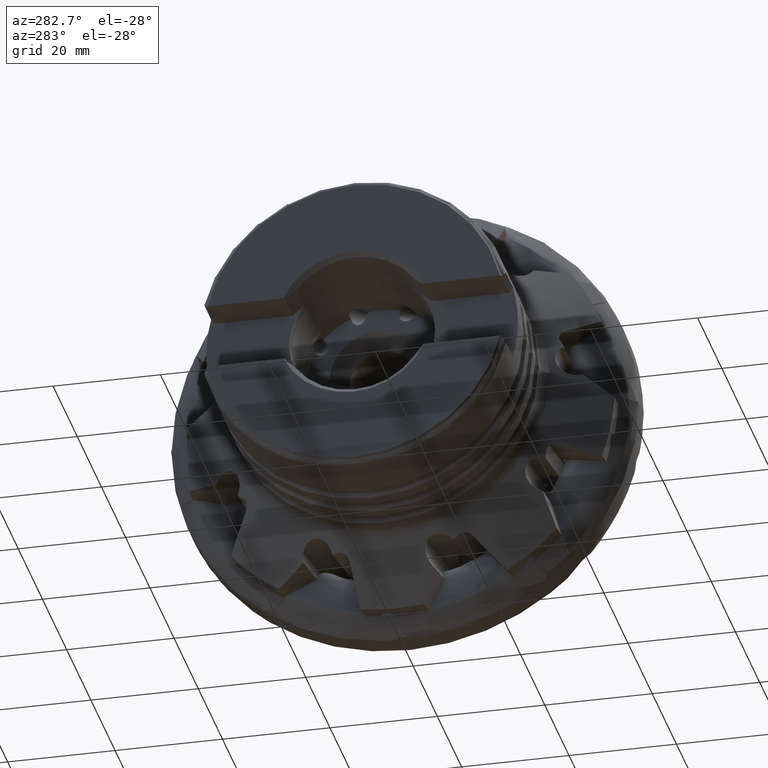
[diagram: clean part render]
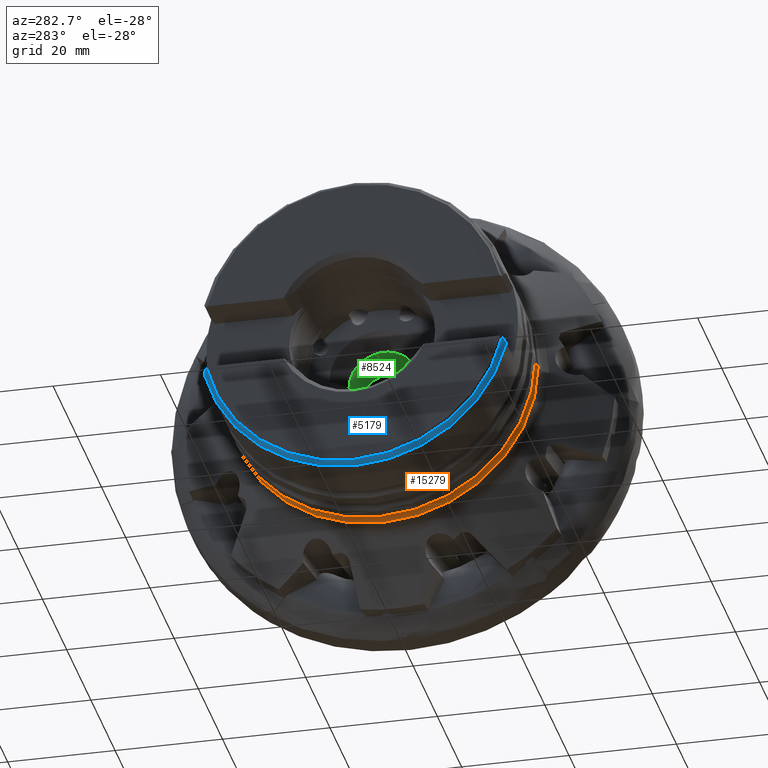
[diagram: same view with three faces highlighted in distinct colors, each labeled with its STEP entity id]
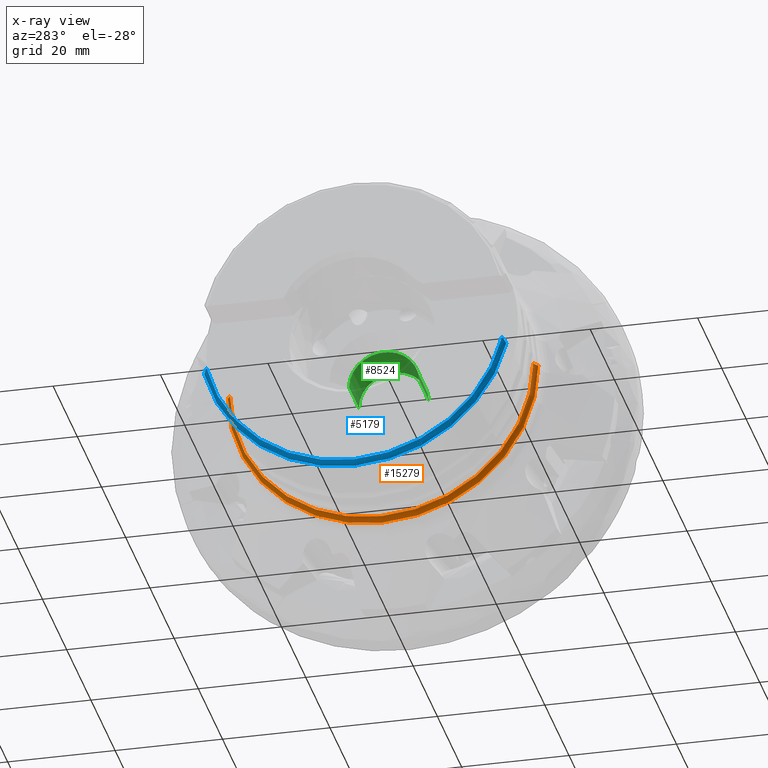
[diagram: x-ray of the same camera — body ghosted, the three highlighted faces saturated]
A machine part, auxiliary view with three faces highlighted in distinct colors.
The next image is the same camera in x-ray (body ghosted, the three faces saturated) — at least one of them is partly hidden behind the body in this view.
Their STEP definitions:

[orange] entity #15279 — the highlighted toroidal blend (fillet) surface has major radius 29.75 mm and minor (blend) radius 1.5 mm.
#102 = EDGE_CURVE ( 'NONE', #8661, #2740, #10117, .T. ) ;
#318 = CIRCLE ( 'NONE', #3171, 1.500000000000001300 ) ;
#1261 = FACE_OUTER_BOUND ( 'NONE', #14093, .T. ) ;
#1857 = DIRECTION ( 'NONE',  ( 1.000000000000000000, 1.224646799147353700E-016, -0.0000000000000000000 ) ) ;
#2046 = CIRCLE ( 'NONE', #2717, 28.91176470588227000 ) ;
#2416 = CARTESIAN_POINT ( 'NONE',  ( -26.15000000000000200, -28.24999999999991500, 3.459627207591261200E-015 ) ) ;
#2717 = AXIS2_PLACEMENT_3D ( 'NONE', #10583, #1857, #12022 ) ;
#2740 = VERTEX_POINT ( 'NONE', #11307 ) ;
#3031 = AXIS2_PLACEMENT_3D ( 'NONE', #5617, #15788, #7080 ) ;
#3049 = ORIENTED_EDGE ( 'NONE', *, *, #5541, .T. ) ;
#3171 = AXIS2_PLACEMENT_3D ( 'NONE', #15240, #6535, #16690 ) ;
#3264 = DIRECTION ( 'NONE',  ( 1.000000000000000000, 1.224646799147353700E-016, -0.0000000000000000000 ) ) ;
#4141 = VERTEX_POINT ( 'NONE', #2416 ) ;
#4987 = CARTESIAN_POINT ( 'NONE',  ( -24.90607010177602400, -28.91176470588227300, 3.540670010476013700E-015 ) ) ;
#5541 = EDGE_CURVE ( 'NONE', #4141, #2740, #15093, .T. ) ;
#5542 = ORIENTED_EDGE ( 'NONE', *, *, #8657, .F. ) ;
#5617 = CARTESIAN_POINT ( 'NONE',  ( -26.15000000000000600, 29.74999999999990800, 0.0000000000000000000 ) ) ;
#6163 = CARTESIAN_POINT ( 'NONE',  ( -24.90607010177603100, 28.91176470588226600, 0.0000000000000000000 ) ) ;
#6364 = DIRECTION ( 'NONE',  ( 1.000000000000000000, 1.224646799147353700E-016, -0.0000000000000000000 ) ) ;
#6535 = DIRECTION ( 'NONE',  ( -1.499759782661858200E-032, 1.224646799147353200E-016, 1.000000000000000000 ) ) ;
#7029 = VERTEX_POINT ( 'NONE', #4987 ) ;
#7080 = DIRECTION ( 'NONE',  ( -1.000000000000000000, 0.0000000000000000000, 0.0000000000000000000 ) ) ;
#7807 = ORIENTED_EDGE ( 'NONE', *, *, #102, .F. ) ;
#7845 = CARTESIAN_POINT ( 'NONE',  ( -26.15000000000000200, -3.469446951953614200E-015, 0.0000000000000000000 ) ) ;
#7897 = AXIS2_PLACEMENT_3D ( 'NONE', #7845, #6364, #10786 ) ;
#8657 = EDGE_CURVE ( 'NONE', #7029, #8661, #2046, .T. ) ;
#8661 = VERTEX_POINT ( 'NONE', #6163 ) ;
#10117 = CIRCLE ( 'NONE', #3031, 1.500000000000001300 ) ;
#10583 = CARTESIAN_POINT ( 'NONE',  ( -24.90607010177602700, -3.050113902947961600E-015, 0.0000000000000000000 ) ) ;
#10786 = DIRECTION ( 'NONE',  ( -1.224646799147353700E-016, 1.000000000000000000, 0.0000000000000000000 ) ) ;
#11307 = CARTESIAN_POINT ( 'NONE',  ( -26.15000000000000200, 28.24999999999990800, 0.0000000000000000000 ) ) ;
#11967 = CARTESIAN_POINT ( 'NONE',  ( -26.15000000000000200, -3.469446951953614200E-015, 0.0000000000000000000 ) ) ;
#12022 = DIRECTION ( 'NONE',  ( -1.200012170563817100E-016, 1.000000000000000000, 0.0000000000000000000 ) ) ;
#12836 = TOROIDAL_SURFACE ( 'NONE', #7897, 29.74999999999991100, 1.500000000000000700 ) ;
#13391 = DIRECTION ( 'NONE',  ( -1.228122814850840800E-016, 1.000000000000000000, 0.0000000000000000000 ) ) ;
#14093 = EDGE_LOOP ( 'NONE', ( #14779, #3049, #7807, #5542 ) ) ;
#14779 = ORIENTED_EDGE ( 'NONE', *, *, #16797, .T. ) ;
#15093 = CIRCLE ( 'NONE', #15439, 28.24999999999991100 ) ;
#15240 = CARTESIAN_POINT ( 'NONE',  ( -26.14999999999999900, -29.74999999999991500, 3.643324227463364300E-015 ) ) ;
#15279 = ADVANCED_FACE ( 'NONE', ( #1261 ), #12836, .F. ) ;
#15439 = AXIS2_PLACEMENT_3D ( 'NONE', #11967, #3264, #13391 ) ;
#15788 = DIRECTION ( 'NONE',  ( -0.0000000000000000000, 0.0000000000000000000, -1.000000000000000000 ) ) ;
#16690 = DIRECTION ( 'NONE',  ( 0.0000000000000000000, -1.000000000000000000, 1.224646799147354400E-016 ) ) ;
#16797 = EDGE_CURVE ( 'NONE', #7029, #4141, #318, .T. ) ;

[blue] entity #5179 — the highlighted toroidal blend (fillet) surface has major radius 28 mm and minor (blend) radius 1 mm.
#356 = CIRCLE ( 'NONE', #13723, 28.20499999999999800 ) ;
#934 = DIRECTION ( 'NONE',  ( -1.224646799147353900E-016, 1.000000000000000000, 0.0000000000000000000 ) ) ;
#1321 = B_SPLINE_CURVE_WITH_KNOTS ( 'NONE', 3,
 ( #17300, #10020, #15906, #7216, #17365, #8691, #18809, #10156, #1453, #11607 ),
 .UNSPECIFIED., .F., .F.,
 ( 4, 2, 2, 2, 4 ),
 ( 0.0000000000000000000, 0.0003988505522339760700, 0.0007977011044679521400, 0.001196551656701928200, 0.001595402208935904300 ),
 .UNSPECIFIED. ) ;
#1453 = CARTESIAN_POINT ( 'NONE',  ( -48.60897223004025800, -27.58006288938687300, -6.341108826567981400 ) ) ;
#1849 = CARTESIAN_POINT ( 'NONE',  ( -48.62876197310682600, 27.50847916792021400, -6.229414006798635700 ) ) ;
#3998 = CARTESIAN_POINT ( 'NONE',  ( -48.47815336761254900, 27.78313588775620600, -6.657971396551015900 ) ) ;
#4378 = ORIENTED_EDGE ( 'NONE', *, *, #18329, .T. ) ;
#4770 = VERTEX_POINT ( 'NONE', #15757 ) ;
#5179 = ADVANCED_FACE ( 'NONE', ( #7161 ), #18265, .T. ) ;
#5225 = CARTESIAN_POINT ( 'NONE',  ( -48.62876197310682600, -5.955305769686382100E-015, 0.0000000000000000000 ) ) ;
#5451 = CARTESIAN_POINT ( 'NONE',  ( -48.25013946713546900, 27.96058423724833400, -6.934850846358847000 ) ) ;
#6685 = DIRECTION ( 'NONE',  ( 0.0000000000000000000, 1.000000000000000000, 0.0000000000000000000 ) ) ;
#6838 = ORIENTED_EDGE ( 'NONE', *, *, #12738, .F. ) ;
#6917 = CARTESIAN_POINT ( 'NONE',  ( -47.91709509882156200, 28.08225501466462100, -7.124698416117222900 ) ) ;
#7161 = FACE_OUTER_BOUND ( 'NONE', #14607, .T. ) ;
#7216 = CARTESIAN_POINT ( 'NONE',  ( -48.14877445995087900, -28.01108605309574200, -7.013650762087340100 ) ) ;
#7857 = CIRCLE ( 'NONE', #12468, 28.99999999999991100 ) ;
#8056 = DIRECTION ( 'NONE',  ( 1.000000000000000000, 1.224646799147353700E-016, -0.0000000000000000000 ) ) ;
#8381 = CARTESIAN_POINT ( 'NONE',  ( -47.64999999999999100, 28.10297166081743500, -7.157023391835924300 ) ) ;
#8436 = DIRECTION ( 'NONE',  ( 1.000000000000000000, 1.224646799147353700E-016, -0.0000000000000000000 ) ) ;
#8691 = CARTESIAN_POINT ( 'NONE',  ( -48.41291777204589400, -27.84772606875892400, -6.758753927525303200 ) ) ;
#9636 = CARTESIAN_POINT ( 'NONE',  ( -47.64999999999999900, -6.938893903907228400E-015, 0.0000000000000000000 ) ) ;
#9761 = CARTESIAN_POINT ( 'NONE',  ( -48.62876197310682600, 27.50847916792021400, -6.229414006798635700 ) ) ;
#9776 = VERTEX_POINT ( 'NONE', #13489 ) ;
#9981 = AXIS2_PLACEMENT_3D ( 'NONE', #9636, #8056, #934 ) ;
#10020 = CARTESIAN_POINT ( 'NONE',  ( -47.78522232110169200, -28.10297166081743500, -7.157023391835973100 ) ) ;
#10050 = CARTESIAN_POINT ( 'NONE',  ( -48.62876197310682600, -27.50847916792022100, -6.229414006798680100 ) ) ;
#10156 = CARTESIAN_POINT ( 'NONE',  ( -48.57511601862709200, -27.65049711973441400, -6.451010051358633900 ) ) ;
#11607 = CARTESIAN_POINT ( 'NONE',  ( -48.62876197310682600, -27.50847916792022100, -6.229414006798680100 ) ) ;
#12468 = AXIS2_PLACEMENT_3D ( 'NONE', #17123, #8436, #18553 ) ;
#12680 = CARTESIAN_POINT ( 'NONE',  ( -48.57577667119930700, 27.64940871936798300, -6.449311778619005500 ) ) ;
#12738 = EDGE_CURVE ( 'NONE', #9776, #4770, #7857, .T. ) ;
#13489 = CARTESIAN_POINT ( 'NONE',  ( -47.64999999999999100, -28.10297166081743800, -7.157023391835970500 ) ) ;
#13723 = AXIS2_PLACEMENT_3D ( 'NONE', #5225, #15385, #6685 ) ;
#14154 = CARTESIAN_POINT ( 'NONE',  ( -48.41357031432581000, 27.84715059204750200, -6.757855989191713600 ) ) ;
#14607 = EDGE_LOOP ( 'NONE', ( #6838, #17160, #15370, #4378 ) ) ;
#15370 = ORIENTED_EDGE ( 'NONE', *, *, #15381, .T. ) ;
#15381 = EDGE_CURVE ( 'NONE', #17981, #16139, #356, .T. ) ;
#15385 = DIRECTION ( 'NONE',  ( 1.000000000000000000, 1.224646799147353700E-016, -0.0000000000000000000 ) ) ;
#15610 = CARTESIAN_POINT ( 'NONE',  ( -48.15050813921048000, 28.01044656011358200, -7.012652936716887300 ) ) ;
#15757 = CARTESIAN_POINT ( 'NONE',  ( -47.64999999999999100, 28.10297166081743500, -7.157023391835924300 ) ) ;
#15906 = CARTESIAN_POINT ( 'NONE',  ( -47.91687982733394300, -28.08221421149830400, -7.124634749375525500 ) ) ;
#16139 = VERTEX_POINT ( 'NONE', #1849 ) ;
#16450 = B_SPLINE_CURVE_WITH_KNOTS ( 'NONE', 3,
 ( #9761, #18443, #12680, #3998, #14154, #5451, #15610, #6917, #17056, #8381 ),
 .UNSPECIFIED., .F., .F.,
 ( 4, 2, 2, 2, 4 ),
 ( 0.0000000000000000000, 0.0003981209864372532400, 0.0007962419728745064800, 0.001194362959311759800, 0.001592483945749013000 ),
 .UNSPECIFIED. ) ;
#16507 = EDGE_CURVE ( 'NONE', #9776, #17981, #1321, .T. ) ;
#17056 = CARTESIAN_POINT ( 'NONE',  ( -47.78513133681192200, 28.10297166081750900, -7.157023391836027300 ) ) ;
#17123 = CARTESIAN_POINT ( 'NONE',  ( -47.64999999999999100, -5.835441997937139400E-015, 0.0000000000000000000 ) ) ;
#17160 = ORIENTED_EDGE ( 'NONE', *, *, #16507, .T. ) ;
#17300 = CARTESIAN_POINT ( 'NONE',  ( -47.64999999999999100, -28.10297166081743800, -7.157023391835970500 ) ) ;
#17365 = CARTESIAN_POINT ( 'NONE',  ( -48.24922452859446800, -27.96109553356854600, -6.935648641572180800 ) ) ;
#17981 = VERTEX_POINT ( 'NONE', #10050 ) ;
#18265 = TOROIDAL_SURFACE ( 'NONE', #9981, 27.99999999999991500, 0.9999999999999991100 ) ;
#18329 = EDGE_CURVE ( 'NONE', #16139, #4770, #16450, .T. ) ;
#18443 = CARTESIAN_POINT ( 'NONE',  ( -48.60898213468211500, 27.58002706218485000, -6.341052924013700600 ) ) ;
#18553 = DIRECTION ( 'NONE',  ( -2.392722035830085900E-016, 1.000000000000000000, 0.0000000000000000000 ) ) ;
#18809 = CARTESIAN_POINT ( 'NONE',  ( -48.47770404009249700, -27.78356586536286700, -6.658642307063901800 ) ) ;

[green] entity #8524 — the highlighted cylindrical surface (edge-blend (fillet) strip) has radius 6.5 mm, axis along (1, 0, -0).
#659 = LINE ( 'NONE', #17429, #15640 ) ;
#974 = AXIS2_PLACEMENT_3D ( 'NONE', #16430, #7737, #17885 ) ;
#1760 = DIRECTION ( 'NONE',  ( 1.000000000000000000, 1.653279061886031000E-016, -0.0000000000000000000 ) ) ;
#2502 = ORIENTED_EDGE ( 'NONE', *, *, #4427, .T. ) ;
#2606 = CIRCLE ( 'NONE', #9123, 6.500000000000001800 ) ;
#2739 = DIRECTION ( 'NONE',  ( 1.000000000000000000, 1.653279061886031000E-016, -0.0000000000000000000 ) ) ;
#2860 = DIRECTION ( 'NONE',  ( 1.000000000000000000, 1.653279061886031000E-016, -0.0000000000000000000 ) ) ;
#3265 = CARTESIAN_POINT ( 'NONE',  ( -24.15000000000000200, 6.499999999999997300, 0.0000000000000000000 ) ) ;
#4138 = CARTESIAN_POINT ( 'NONE',  ( -24.15000000000000200, -6.500000000000005300, 7.960204194457798400E-016 ) ) ;
#4391 = DIRECTION ( 'NONE',  ( -1.653279061886031000E-016, 1.000000000000000000, 0.0000000000000000000 ) ) ;
#4427 = EDGE_CURVE ( 'Kante18', #14804, #13749, #16475, .T. ) ;
#4778 = VERTEX_POINT ( 'NONE', #4138 ) ;
#5108 = ORIENTED_EDGE ( 'NONE', *, *, #16679, .T. ) ;
#5836 = CARTESIAN_POINT ( 'NONE',  ( -8.673617379884035500E-016, 0.0000000000000000000, 0.0000000000000000000 ) ) ;
#6070 = CARTESIAN_POINT ( 'NONE',  ( -1.941993128214323900E-015, 6.500000000000000900, 0.0000000000000000000 ) ) ;
#7737 = DIRECTION ( 'NONE',  ( 1.000000000000000000, 1.653279061886031000E-016, -0.0000000000000000000 ) ) ;
#8524 = ADVANCED_FACE ( 'Fl�che5', ( #11161 ), #18374, .F. ) ;
#9123 = AXIS2_PLACEMENT_3D ( 'NONE', #11462, #2739, #12899 ) ;
#9651 = CARTESIAN_POINT ( 'NONE',  ( -15.99999999999998900, 6.499999999999997300, 0.0000000000000000000 ) ) ;
#11161 = FACE_OUTER_BOUND ( 'NONE', #18485, .T. ) ;
#11462 = CARTESIAN_POINT ( 'NONE',  ( -24.15000000000000200, -3.992668934454765000E-015, 0.0000000000000000000 ) ) ;
#11657 = EDGE_CURVE ( 'NONE', #4778, #13749, #659, .T. ) ;
#12899 = DIRECTION ( 'NONE',  ( 0.0000000000000000000, 1.000000000000000000, 0.0000000000000000000 ) ) ;
#13226 = ORIENTED_EDGE ( 'NONE', *, *, #11657, .F. ) ;
#13749 = VERTEX_POINT ( 'NONE', #14479 ) ;
#14479 = CARTESIAN_POINT ( 'NONE',  ( -15.99999999999998900, -6.500000000000002700, 7.960204194457796500E-016 ) ) ;
#14612 = VECTOR ( 'NONE', #1760, 1000.000000000000000 ) ;
#14804 = VERTEX_POINT ( 'NONE', #9651 ) ;
#15640 = VECTOR ( 'NONE', #2860, 1000.000000000000000 ) ;
#15717 = VERTEX_POINT ( 'NONE', #3265 ) ;
#15995 = EDGE_CURVE ( 'NONE', #15717, #4778, #2606, .T. ) ;
#16430 = CARTESIAN_POINT ( 'NONE',  ( -15.99999999999998900, -2.645246499017648100E-015, 0.0000000000000000000 ) ) ;
#16475 = CIRCLE ( 'NONE', #974, 6.500000000000000000 ) ;
#16679 = EDGE_CURVE ( 'NONE', #15717, #14804, #18451, .T. ) ;
#16688 = AXIS2_PLACEMENT_3D ( 'NONE', #5836, #17389, #4391 ) ;
#17389 = DIRECTION ( 'NONE',  ( 1.000000000000000000, 1.653279061886031000E-016, -0.0000000000000000000 ) ) ;
#17429 = CARTESIAN_POINT ( 'NONE',  ( 2.072696522375166700E-016, -6.500000000000000900, 7.960204194457796500E-016 ) ) ;
#17885 = DIRECTION ( 'NONE',  ( 0.0000000000000000000, 1.000000000000000000, 0.0000000000000000000 ) ) ;
#18374 = CYLINDRICAL_SURFACE ( 'NONE', #16688, 6.500000000000000900 ) ;
#18451 = LINE ( 'NONE', #6070, #14612 ) ;
#18485 = EDGE_LOOP ( 'NONE', ( #13226, #18663, #5108, #2502 ) ) ;
#18663 = ORIENTED_EDGE ( 'NONE', *, *, #15995, .F. ) ;